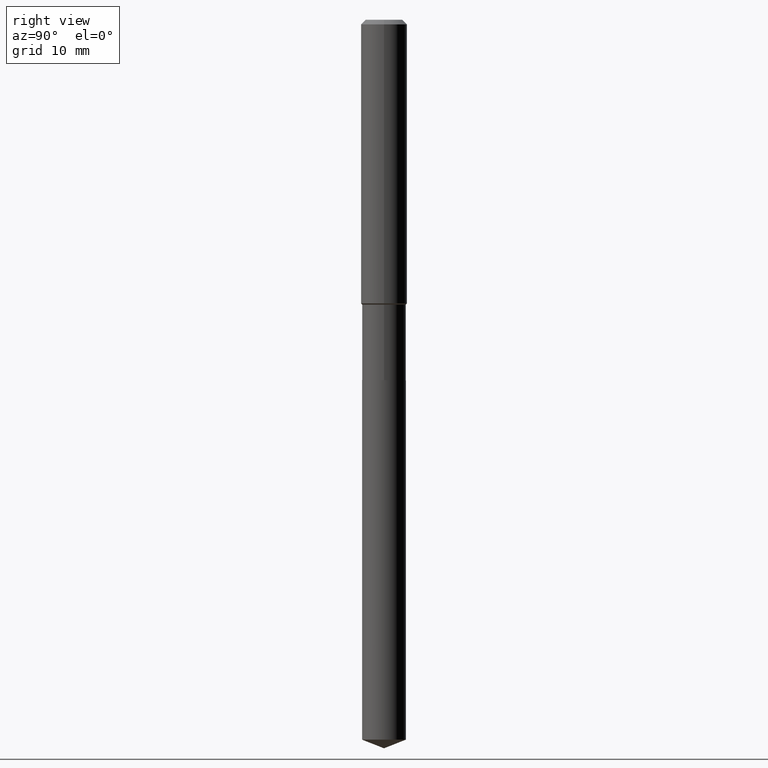
[diagram: clean part render]
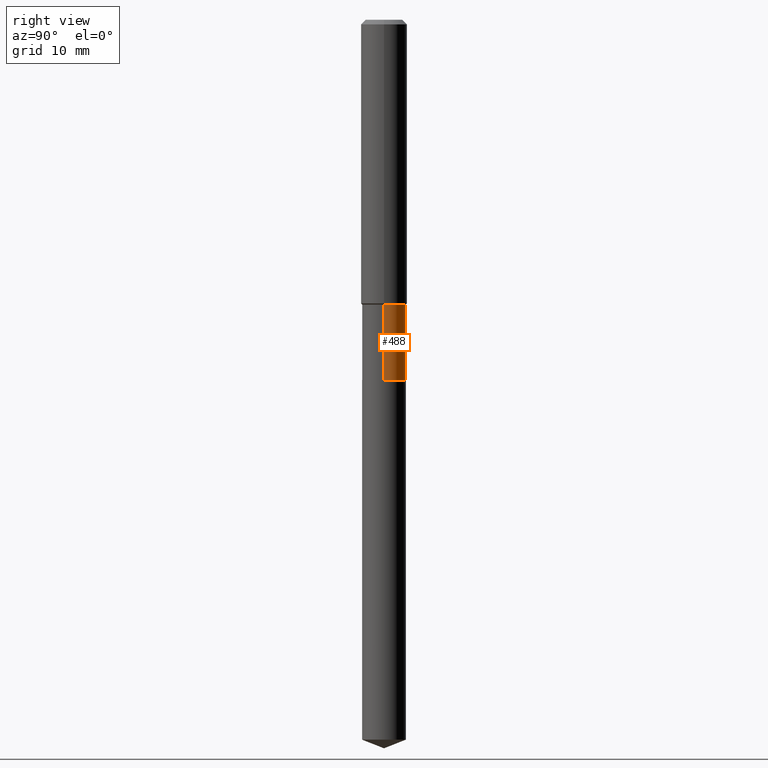
[diagram: same view with one face highlighted and labeled with its STEP entity id]
A machine part, right view. The second image highlights one B-rep face of the part: STEP entity #488.
In plain terms, the highlighted cylindrical surface (edge-blend (fillet) strip) has radius 2.8499 mm, axis along (-0, 0, 1).
Its self-contained STEP definition (entity closure, byte-faithful):
#1 = DIRECTION ( 'NONE',  ( -2.445468806185136597E-29, 3.491481338843145583E-15, 1.000000000000000000 ) ) ;
#4 = VERTEX_POINT ( 'NONE', #250 ) ;
#7 = CARTESIAN_POINT ( 'NONE',  ( 3.576253582165144497E-29, -5.105942309924217164E-15, -1.462400000000000144 ) ) ;
#8 = ORIENTED_EDGE ( 'NONE', *, *, #195, .T. ) ;
#21 = EDGE_LOOP ( 'NONE', ( #321, #8, #128, #427 ) ) ;
#30 = VECTOR ( 'NONE', #452, 39.37007874015748143 ) ;
#55 = CARTESIAN_POINT ( 'NONE',  ( 4.523872744561885153E-29, -6.458891328725936072E-15, -1.849900000000000322 ) ) ;
#74 = DIRECTION ( 'NONE',  ( 1.000000000000000000, -6.982962677686270655E-15, 0.000000000000000000 ) ) ;
#80 = DIRECTION ( 'NONE',  ( -2.445468806185136877E-29, 3.491481338843145188E-15, 1.000000000000000000 ) ) ;
#119 = DIRECTION ( 'NONE',  ( -2.445468806185136597E-29, 3.491481338843145583E-15, 1.000000000000000000 ) ) ;
#122 = AXIS2_PLACEMENT_3D ( 'NONE', #317, #119, #425 ) ;
#125 = DIRECTION ( 'NONE',  ( -2.445468806185136597E-29, 3.491481338843145583E-15, 1.000000000000000000 ) ) ;
#128 = ORIENTED_EDGE ( 'NONE', *, *, #221, .F. ) ;
#149 = CARTESIAN_POINT ( 'NONE',  ( 0.1121999999999999664, -7.834884124363989048E-16, 5.471070342443038844E-30 ) ) ;
#157 = VERTEX_POINT ( 'NONE', #326 ) ;
#187 = VERTEX_POINT ( 'NONE', #289 ) ;
#189 = LINE ( 'NONE', #338, #30 ) ;
#195 = EDGE_CURVE ( 'NONE', #187, #206, #189, .T. ) ;
#206 = VERTEX_POINT ( 'NONE', #459 ) ;
#221 = EDGE_CURVE ( 'NONE', #157, #206, #311, .T. ) ;
#242 = AXIS2_PLACEMENT_3D ( 'NONE', #7, #1, #74 ) ;
#244 = CIRCLE ( 'NONE', #479, 0.1122000000000000081 ) ;
#250 = CARTESIAN_POINT ( 'NONE',  ( 0.1122000000000000081, -7.242379741162336062E-15, -1.849900000000000322 ) ) ;
#269 = LINE ( 'NONE', #149, #385 ) ;
#289 = CARTESIAN_POINT ( 'NONE',  ( -0.1121999999999999803, -4.985187869802244054E-15, -1.849900000000000322 ) ) ;
#309 = CYLINDRICAL_SURFACE ( 'NONE', #122, 0.1121999999999999664 ) ;
#311 = CIRCLE ( 'NONE', #242, 0.1121999999999999525 ) ;
#312 = FACE_OUTER_BOUND ( 'NONE', #21, .T. ) ;
#317 = CARTESIAN_POINT ( 'NONE',  ( 0.000000000000000000, 0.000000000000000000, 0.000000000000000000 ) ) ;
#321 = ORIENTED_EDGE ( 'NONE', *, *, #406, .T. ) ;
#326 = CARTESIAN_POINT ( 'NONE',  ( 0.1121999999999999525, -5.889430722360616365E-15, -1.462400000000000144 ) ) ;
#338 = CARTESIAN_POINT ( 'NONE',  ( -0.1121999999999999664, 7.972289495228321700E-16, -5.519045171266003019E-30 ) ) ;
#340 = EDGE_CURVE ( 'NONE', #4, #157, #269, .T. ) ;
#385 = VECTOR ( 'NONE', #80, 39.37007874015748143 ) ;
#394 = DIRECTION ( 'NONE',  ( 1.000000000000000000, -6.982962677686266711E-15, 0.000000000000000000 ) ) ;
#406 = EDGE_CURVE ( 'NONE', #4, #187, #244, .T. ) ;
#425 = DIRECTION ( 'NONE',  ( 1.000000000000000000, -6.982962677686266711E-15, 4.876176775795936353E-29 ) ) ;
#427 = ORIENTED_EDGE ( 'NONE', *, *, #340, .F. ) ;
#452 = DIRECTION ( 'NONE',  ( -2.445468806185136877E-29, 3.491481338843145188E-15, 1.000000000000000000 ) ) ;
#459 = CARTESIAN_POINT ( 'NONE',  ( -0.1121999999999999525, -4.985187869802244054E-15, -1.462400000000000144 ) ) ;
#479 = AXIS2_PLACEMENT_3D ( 'NONE', #55, #125, #394 ) ;
#488 = ADVANCED_FACE ( 'NONE', ( #312 ), #309, .T. ) ;